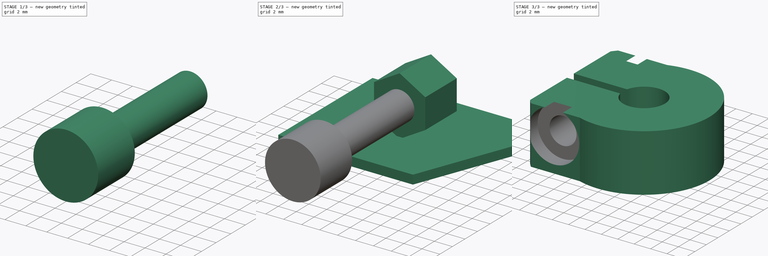
[diagram: build sequence overview — one tinted view per stage of 3, left to right]
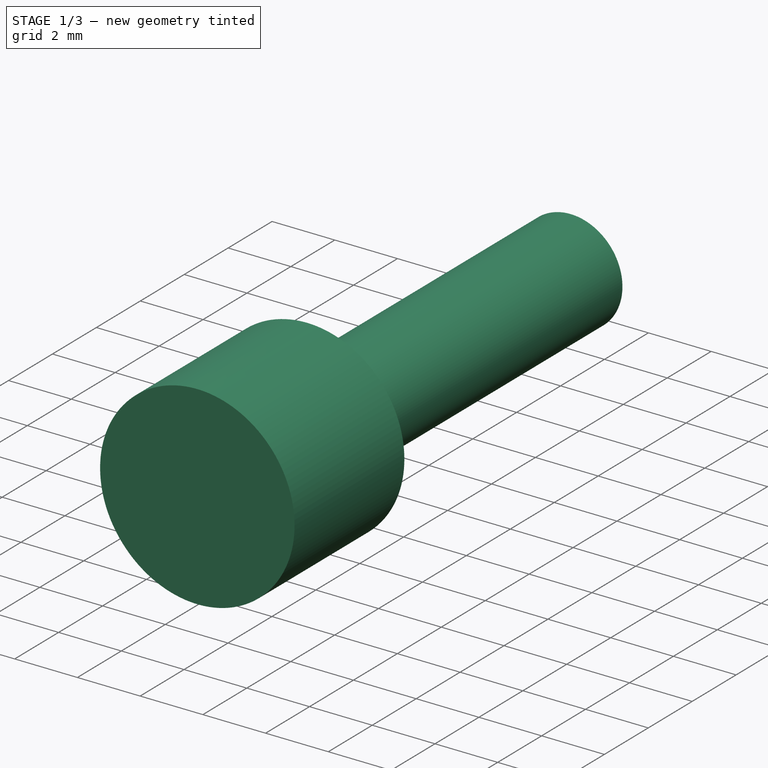
[diagram: stage 1 of 3 — iso view after this stage's code; geometry added in this stage tinted green]
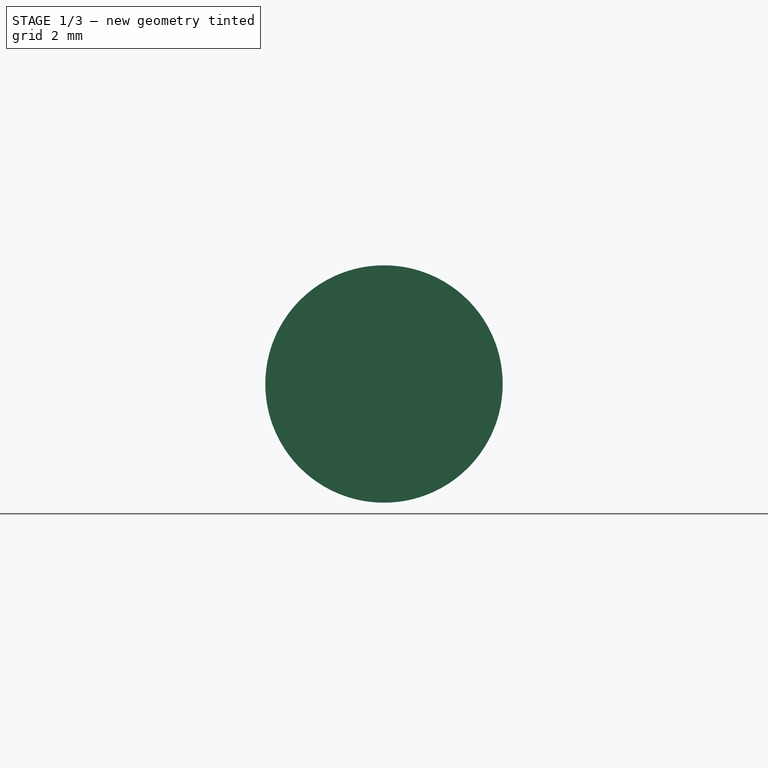
[diagram: stage 1 of 3 — front view after this stage's code; geometry added in this stage tinted green]
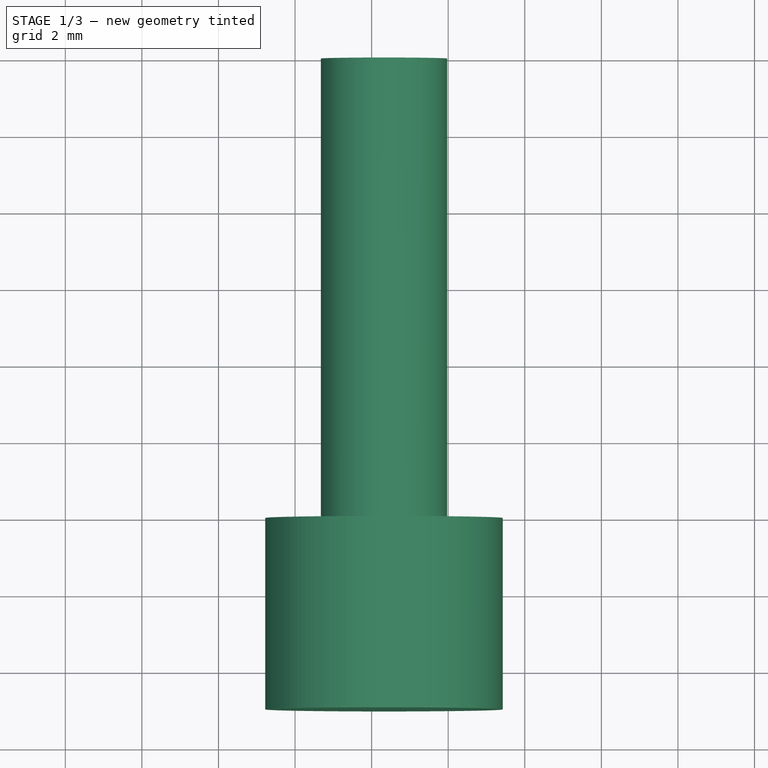
[diagram: stage 1 of 3 — top view after this stage's code; geometry added in this stage tinted green]
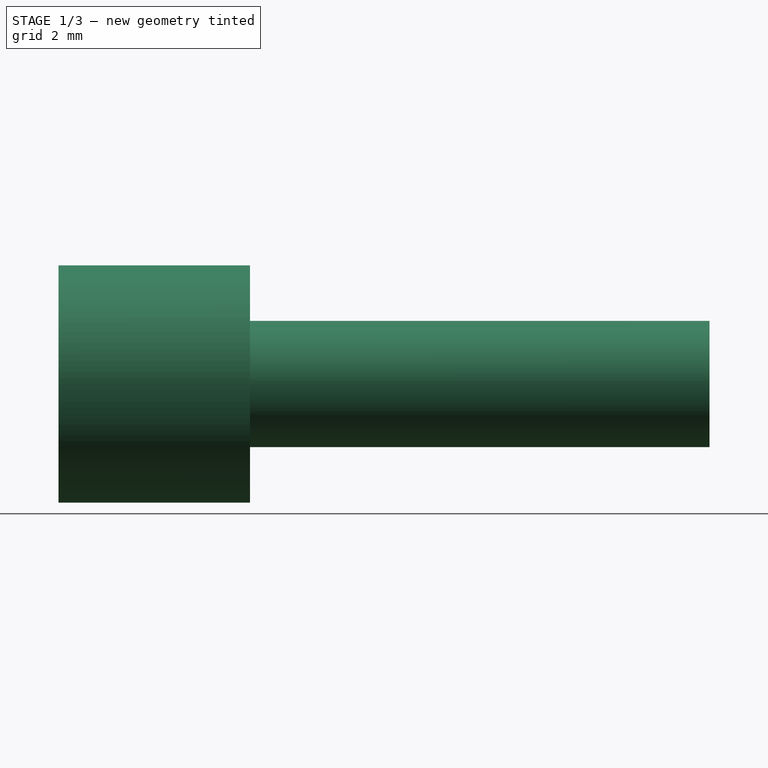
[diagram: stage 1 of 3 — right view after this stage's code; geometry added in this stage tinted green]
FCSTD DOCUMENT  (FreeCAD 0.17R13346 (Git))
Label: fixation
License: All rights reserved
LicenseURL: http://en.wikipedia.org/wiki/All_rights_reserved
objects: Sketcher::SketchObject×5, Part::Extrusion×3, Part::Cut×2, PartDesign::Pad×2, PartDesign::FeatureBase×1, PartDesign::Body×1
note: 16 computed .brp shape members not serialized (recipe doc carries the construction recipe); baked Part::Feature solids carry a one-line shape summary decoded from their .brp

FEATURE [Sketcher::SketchObject] Sketch002
  ExternalGeometry = -> [Sketch]
  Placement = pos=(0,0,0) rot=(1,0,0;1.5708rad)
  sketch-geometry (3):
    g0: Circle CenterX=-5.67693 CenterY=4.1 CenterZ=0 NormalX=0 NormalY=0 NormalZ=1 AngleXU=0 Radius=1.65
    g1: LineSegment [constr] StartX=-5.67693 StartY=4.1 StartZ=0 EndX=-2.42693 EndY=0 EndZ=0
    g2: LineSegment [constr] StartX=-5.67693 StartY=4.1 StartZ=0 EndX=-8.92693 EndY=0 EndZ=0
  constraints (5):
    c: Radius(g0) = 1.65
    c: Coincident(g1,g0)
    c: Coincident(g2,g0)
    c: Equal(g1,g2)
    c: DistanceY(g-1,g0) = 4.1
FEATURE [Part::Extrusion] Extrude003
  Base = -> Sketch002
  Dir = (0,-1,0)
  DirMode = 2
  FaceMakerClass = Part::FaceMakerBullseye
  LengthFwd = 6
  LengthRev = 6
  Solid = true
  Symmetric = false
FEATURE [PartDesign::FeatureBase] BaseFeature
  BaseFeature = -> Extrude003
FEATURE [Sketcher::SketchObject] Sketch003
  ExternalGeometry = -> [Extrude003]
  MapMode = 5
  Placement = pos=(0,-6,0) rot=(1,0,0;1.5708rad)
  Support = -> [BaseFeature]
  sketch-geometry (1):
    g0: Circle CenterX=-5.67693 CenterY=4.1 CenterZ=0 NormalX=0 NormalY=0 NormalZ=1 AngleXU=0 Radius=3.1
  constraints (2):
    c: Coincident(g0,g-3)
    c: Radius(g0) = 3.1
FEATURE [PartDesign::Pad] Pad
  BaseFeature = -> BaseFeature
  Length = 5
  Length2 = 100
  Profile = -> Sketch003
  Type = 0
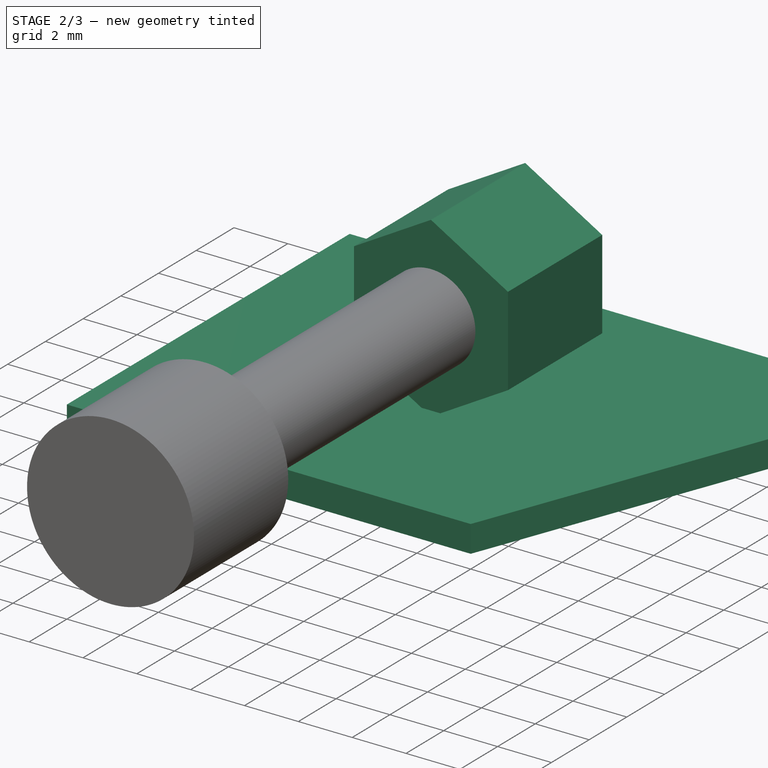
[diagram: stage 2 of 3 — iso view after this stage's code; geometry added in this stage tinted green]
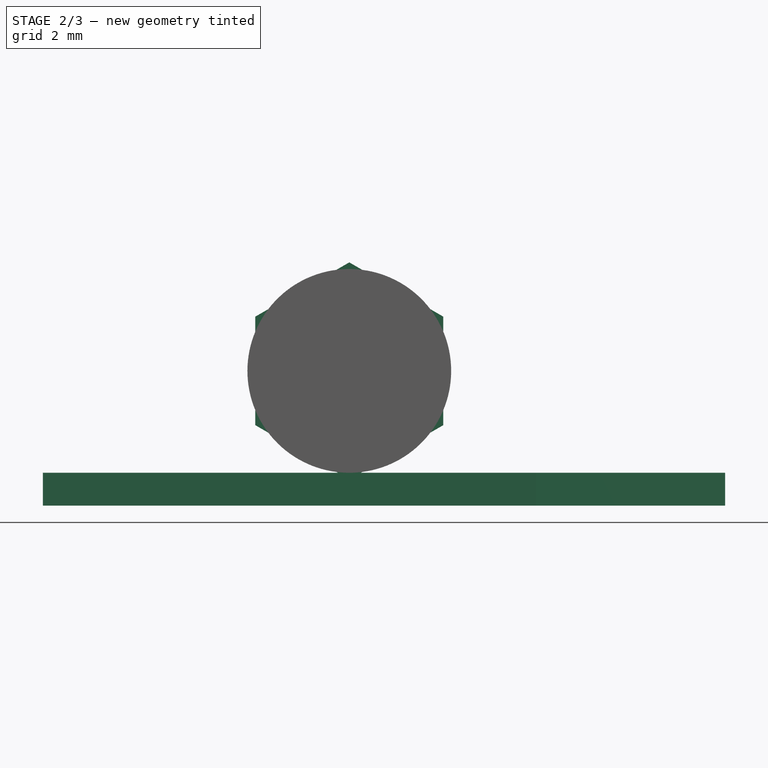
[diagram: stage 2 of 3 — front view after this stage's code; geometry added in this stage tinted green]
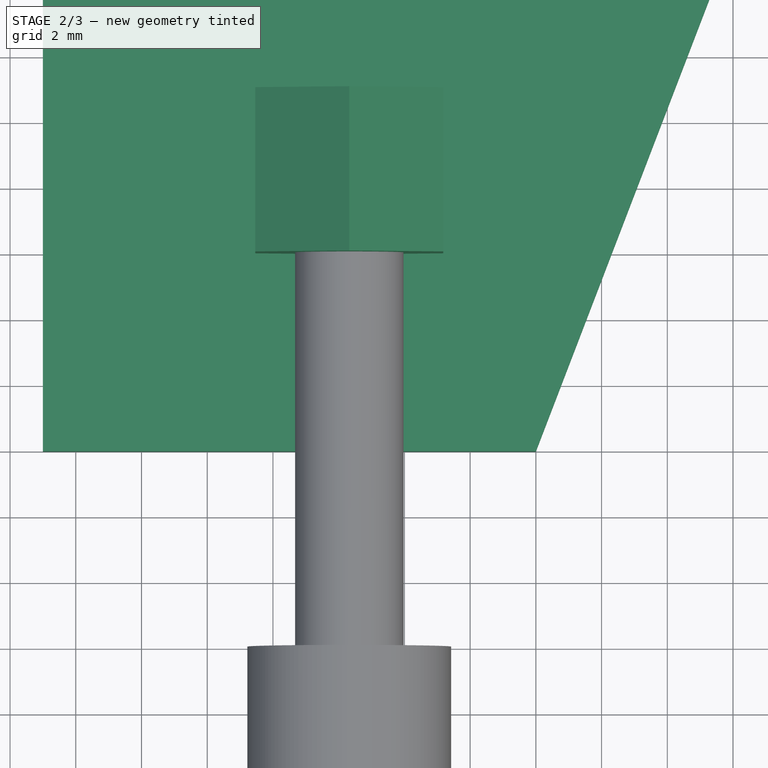
[diagram: stage 2 of 3 — top view after this stage's code; geometry added in this stage tinted green]
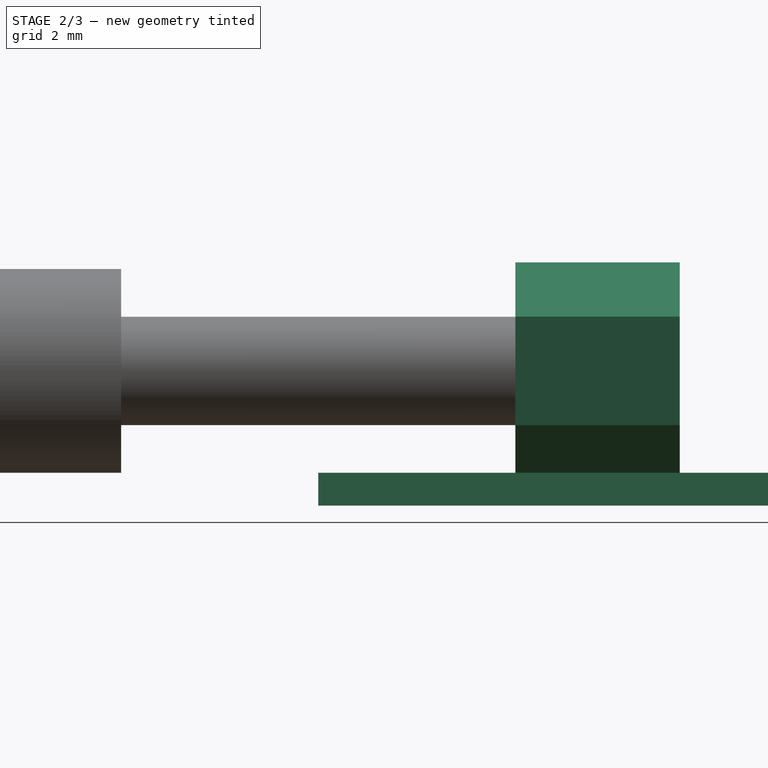
[diagram: stage 2 of 3 — right view after this stage's code; geometry added in this stage tinted green]
FEATURE [Sketcher::SketchObject] Sketch001
  sketch-geometry (4):
    g0: LineSegment StartX=0 StartY=0 StartZ=0 EndX=-15 EndY=0 EndZ=0
    g1: LineSegment StartX=-15 StartY=0 StartZ=0 EndX=-15 EndY=15.0011 EndZ=0
    g2: LineSegment StartX=-15 StartY=15.0011 StartZ=0 EndX=5.75837 EndY=15.0011 EndZ=0
    g3: LineSegment StartX=0 StartY=0 StartZ=0 EndX=5.75837 EndY=15.0011 EndZ=0
  constraints (9):
    c: Coincident(g0,g1)
    c: Coincident(g1,g2)
    c: Horizontal(g0)
    c: Horizontal(g2)
    c: Vertical(g1)
    c: Coincident(g0,g-1)
    c: Coincident(g3,g-1)
    c: Coincident(g3,g2)
    c: Angle(g3,g-2) = 0.366519
FEATURE [Part::Extrusion] Extrude  label="Extrude001"
  Base = -> Sketch001
  Dir = (0,0,1)
  DirMode = 2
  FaceMakerClass = Part::FaceMakerBullseye
  LengthFwd = 1
  LengthRev = 0
  Solid = true
  Symmetric = false
FEATURE [Sketcher::SketchObject] Sketch004
  ExternalGeometry = -> [Pad]
  MapMode = 5
  Placement = pos=(0,6,0) rot=(0,0.707107,0.707107;3.14159rad)
  Support = -> [Pad]
  sketch-geometry (7):
    g0: LineSegment StartX=5.67693 StartY=0.797556 StartZ=0 EndX=8.53693 EndY=2.44878 EndZ=0
    g1: LineSegment StartX=8.53693 StartY=2.44878 StartZ=0 EndX=8.53693 EndY=5.75122 EndZ=0
    g2: LineSegment StartX=8.53693 StartY=5.75122 StartZ=0 EndX=5.67693 EndY=7.40244 EndZ=0
    g3: LineSegment StartX=5.67693 StartY=7.40244 StartZ=0 EndX=2.81693 EndY=5.75122 EndZ=0
    g4: LineSegment StartX=2.81693 StartY=5.75122 StartZ=0 EndX=2.81693 EndY=2.44878 EndZ=0
    g5: LineSegment StartX=2.81693 StartY=2.44878 StartZ=0 EndX=5.67693 EndY=0.797556 EndZ=0
    g6: Circle [constr] CenterX=5.67693 CenterY=4.1 CenterZ=0 NormalX=0 NormalY=0 NormalZ=1 AngleXU=0 Radius=3.30244
  constraints (16):
    c: Coincident(g0,g1)
    c: Coincident(g1,g2)
    c: Coincident(g2,g3)
    c: Coincident(g3,g4)
    c: Coincident(g4,g5)
    c: Coincident(g5,g0)
    c: Equal(g0, g1-g5) x5
    c: PointOnObject(g0,g6)
    c: PointOnObject(g1,g6)
    c: PointOnObject(g2,g6)
    c: PointOnObject(g3,g6)
    c: PointOnObject(g4,g6)
    c: PointOnObject(g5,g6)
    c: Coincident(g6,g-3)
    c: Distance(g0,g4) = 5.72
    c: Vertical(g4)
FEATURE [PartDesign::Pad] Pad001
  BaseFeature = -> Pad
  Length = 5
  Length2 = 100
  Profile = -> Sketch004
  Type = 0
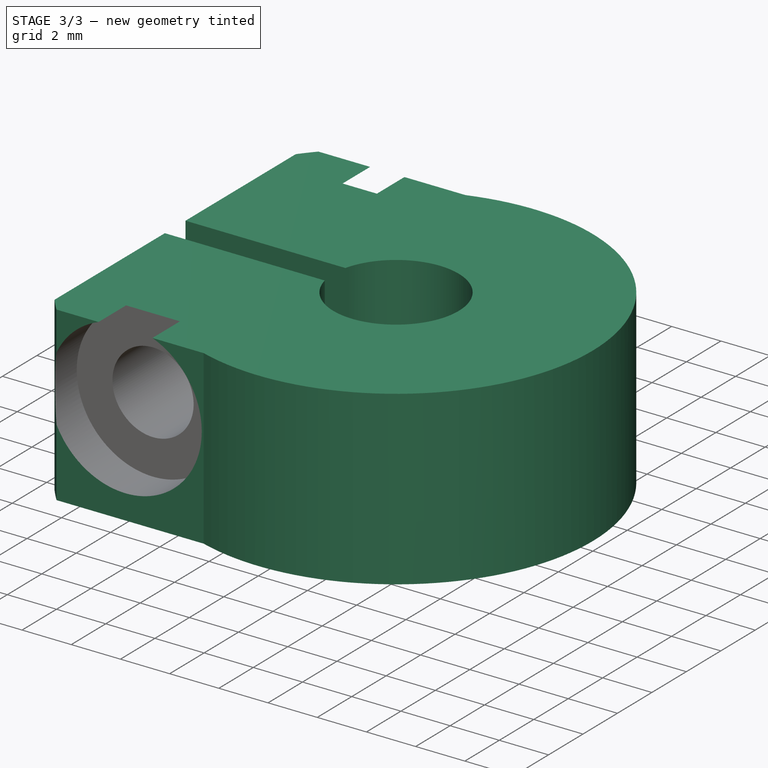
[diagram: stage 3 of 3 — iso view after this stage's code; geometry added in this stage tinted green]
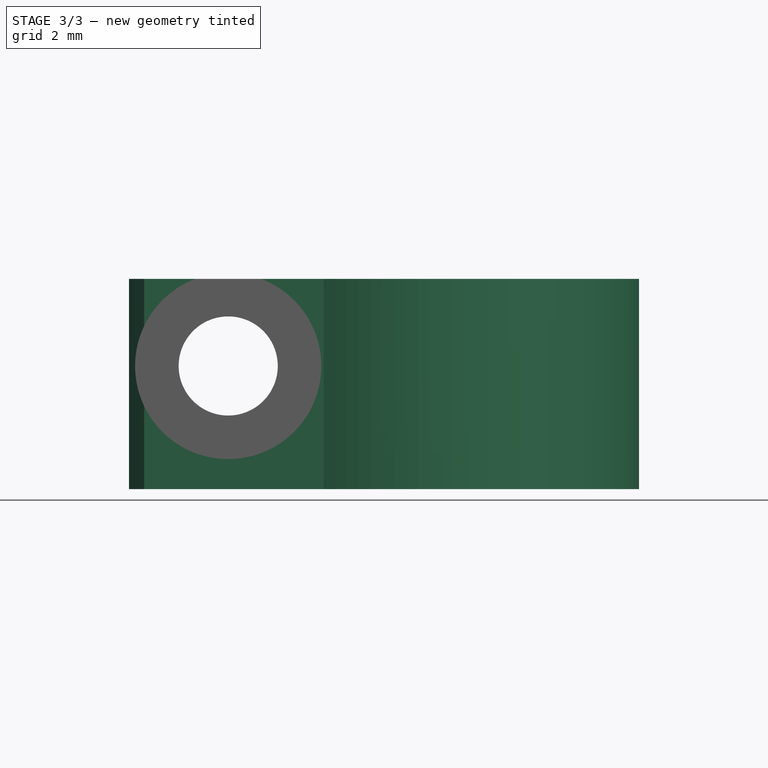
[diagram: stage 3 of 3 — front view after this stage's code; geometry added in this stage tinted green]
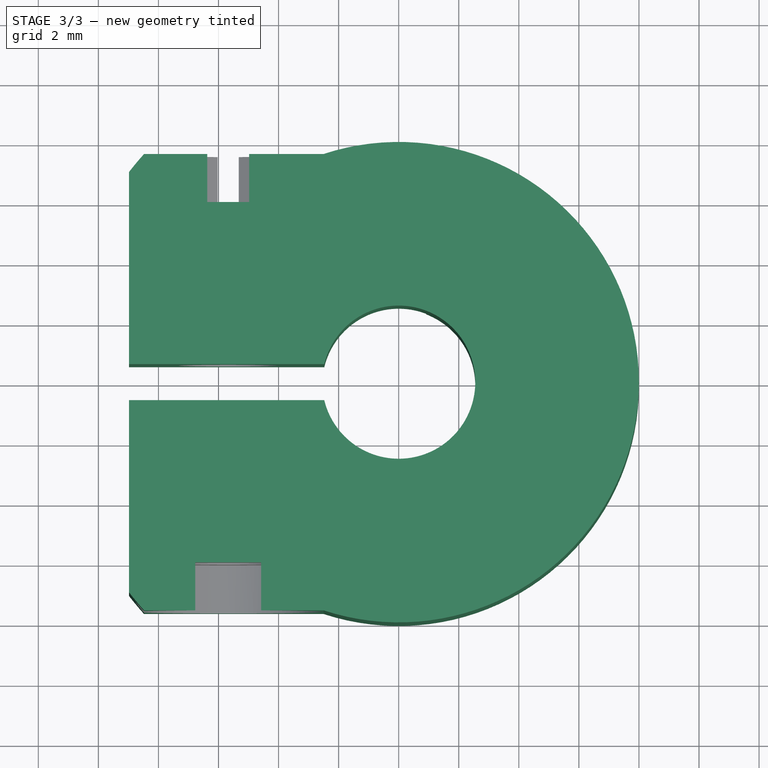
[diagram: stage 3 of 3 — top view after this stage's code; geometry added in this stage tinted green]
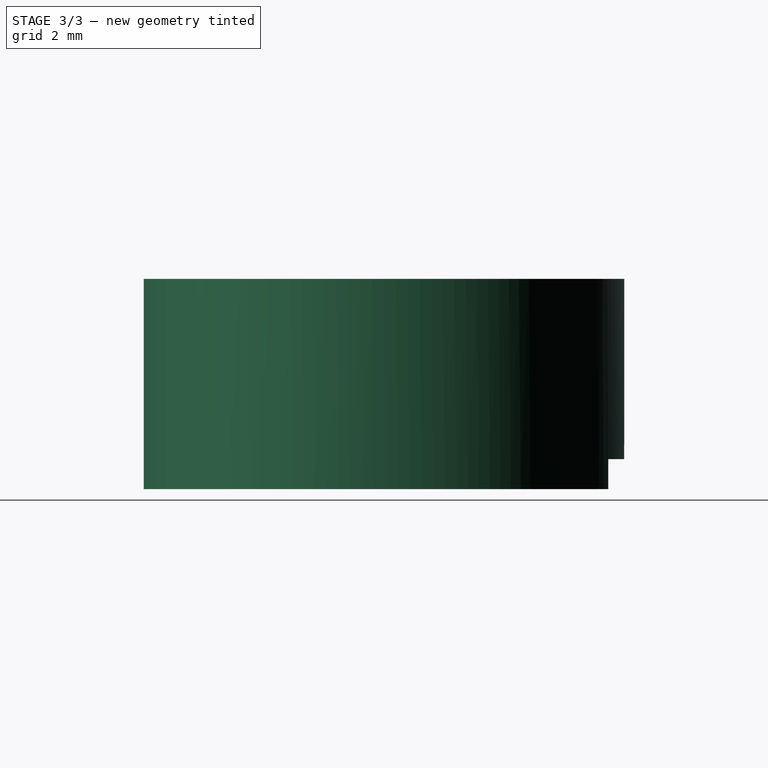
[diagram: stage 3 of 3 — right view after this stage's code; geometry added in this stage tinted green]
FEATURE [Sketcher::SketchObject] Sketch
  sketch-geometry (10):
    g0: ArcOfCircle CenterX=0 CenterY=0 CenterZ=0 NormalX=0 NormalY=0 NormalZ=1 AngleXU=0 Radius=2.55 StartAngle=3.37911 EndAngle=9.18726
    g1: LineSegment StartX=-8.97841 StartY=0.6 StartZ=0 EndX=-2.47841 EndY=0.6 EndZ=0
    g2: LineSegment StartX=-8.97841 StartY=-0.6 StartZ=0 EndX=-2.47841 EndY=-0.6 EndZ=0
    g3: LineSegment StartX=-8.97841 StartY=0.6 StartZ=0 EndX=-8.97841 EndY=7.00226 EndZ=0
    g4: LineSegment StartX=-8.97841 StartY=-0.6 StartZ=0 EndX=-8.97841 EndY=-7.00226 EndZ=0
    g5: LineSegment StartX=-8.47841 StartY=7.6 StartZ=0 EndX=-2.498 EndY=7.6 EndZ=0
    g6: LineSegment StartX=-8.47841 StartY=-7.6 StartZ=0 EndX=-2.498 EndY=-7.6 EndZ=0
    g7: ArcOfCircle CenterX=0 CenterY=0 CenterZ=0 NormalX=0 NormalY=0 NormalZ=1 AngleXU=0 Radius=8 StartAngle=4.39483 EndAngle=8.17154
    g8: ArcOfCircle CenterX=0 CenterY=0 CenterZ=0 NormalX=0 NormalY=0 NormalZ=1 AngleXU=0 Radius=11.3861 StartAngle=2.41077 EndAngle=2.47923
    g9: ArcOfCircle CenterX=0 CenterY=0 CenterZ=0 NormalX=0 NormalY=0 NormalZ=1 AngleXU=0 Radius=11.3861 StartAngle=3.80396 EndAngle=3.87241
  constraints (28):
    c: Coincident(g0,g-1)
    c: Radius(g0) = 2.55
    c: Horizontal(g1)
    c: Coincident(g2,g0)
    c: Coincident(g0,g1)
    c: Horizontal(g2)
    c: Symmetric(g1,g2,g-1)
    c: DistanceX(g1,g1) = 6.5
    c: DistanceY(g2,g1) = 1.2
    c: Coincident(g3,g1)
    c: Vertical(g3)
    c: Coincident(g4,g2)
    c: Vertical(g4)
    c: Horizontal(g5)
    c: Horizontal(g6)
    c: Coincident(g7,g-1)
    c: Coincident(g7,g5)
    c: Coincident(g7,g6)
    c: Radius(g7) = 8
    c: DistanceY(g6,g2) = 7
    c: Symmetric(g5,g6,g-1)
    c: Coincident(g8,g-1)
    c: Coincident(g8,g5)
    c: Coincident(g8,g3)
    c: Coincident(g9,g-1)
    c: Coincident(g9,g4)
    c: Coincident(g9,g6)
    c: DistanceX(g3,g5) = 0.5
FEATURE [Part::Extrusion] Extrude002  label="Extrude"
  Base = -> Sketch
  Dir = (0,0,1)
  DirMode = 2
  FaceMakerClass = Part::FaceMakerBullseye
  LengthFwd = 7
  LengthRev = 0
  Solid = true
  Symmetric = false
FEATURE [Part::Cut] Cut
  Base = -> Extrude002
  Tool = -> Extrude
FEATURE [PartDesign::Body] Body
  BaseFeature = -> Extrude003
  Group = -> [BaseFeature,Pad,Sketch004,Pad001]
  Origin = -> Origin
  Tip = -> Pad001
FEATURE [Part::Cut] Cut001
  Base = -> Cut
  Tool = -> Body
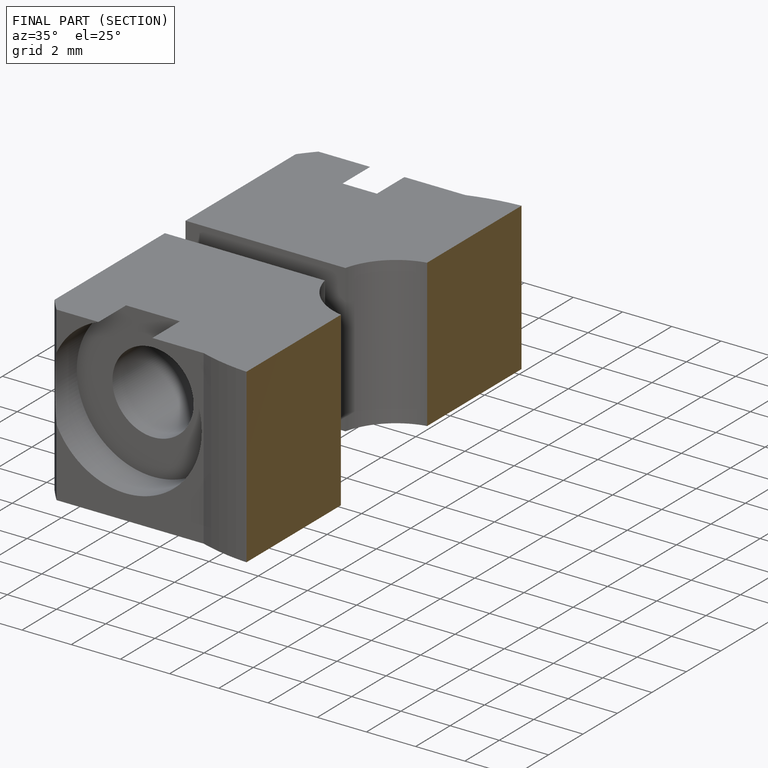
[diagram: finished part — half-section view (interior)]
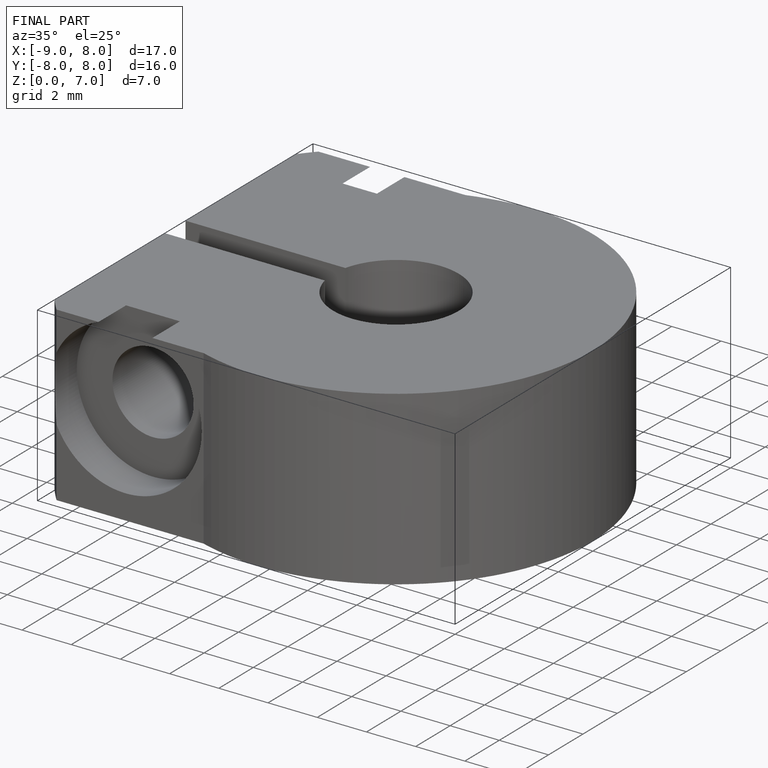
[diagram: finished part — iso view with bounding-box wireframe]
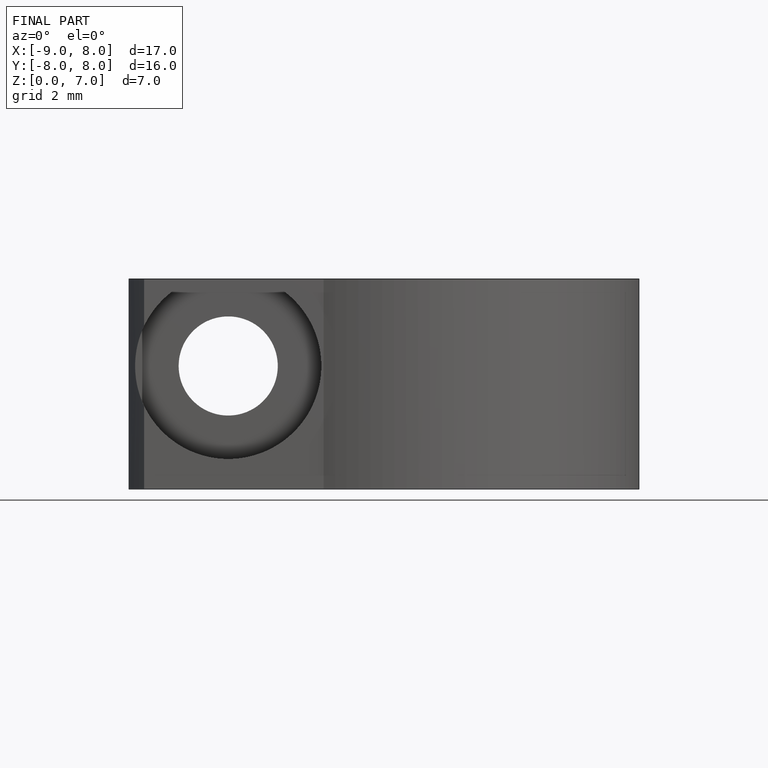
[diagram: finished part — front view with bounding-box wireframe]
